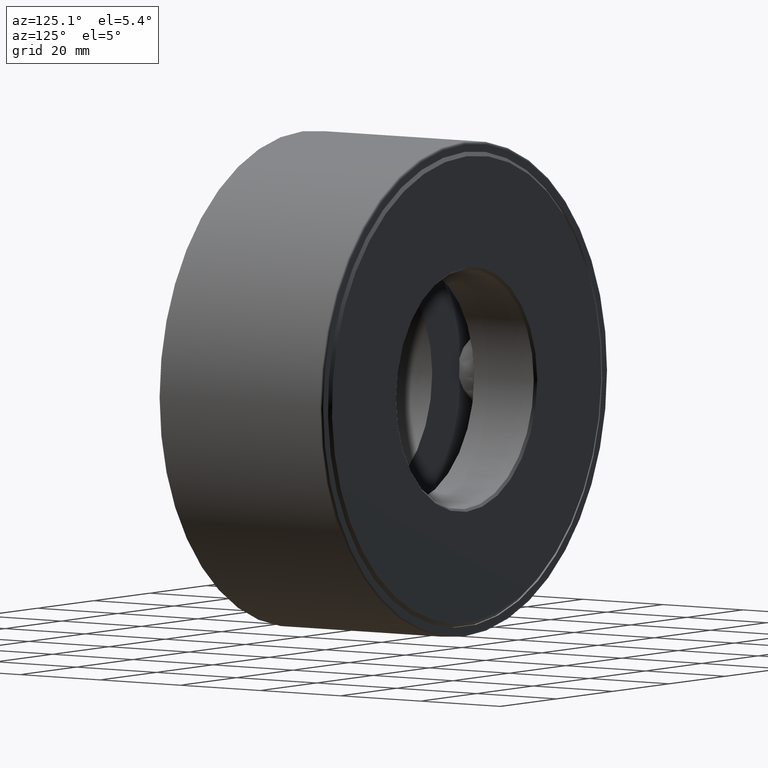
[diagram: clean part render]
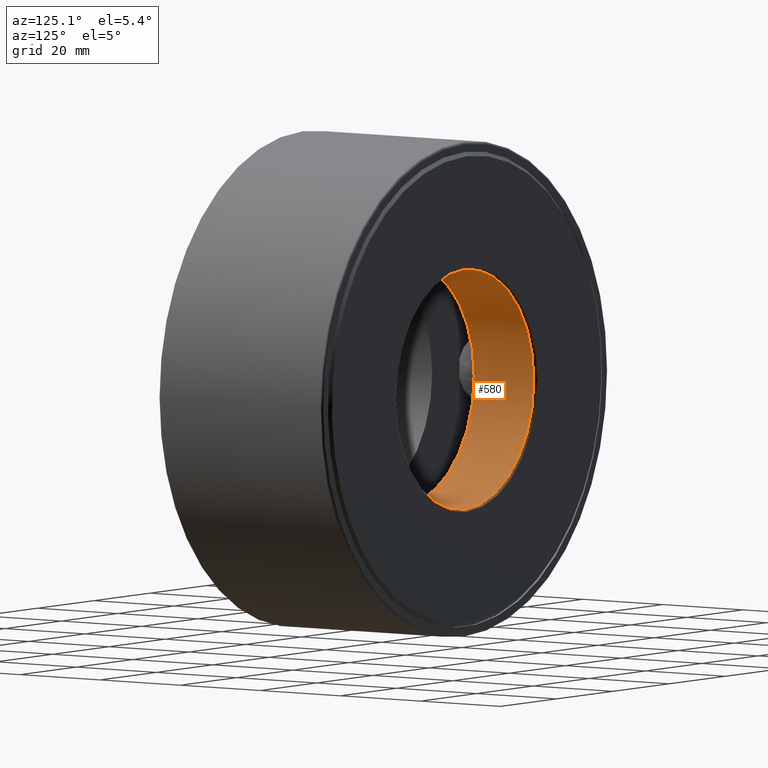
[diagram: same view with one face highlighted and labeled with its STEP entity id]
A machine part, auxiliary view. The second image highlights one B-rep face of the part: STEP entity #580.
In plain terms, the highlighted cylindrical surface (bore or boss wall) has radius 24.6063 mm, axis along (-0, 1, -0).
Its self-contained STEP definition (entity closure, byte-faithful):
#38 = CARTESIAN_POINT ( 'NONE',  ( 0.0000000000000000000, 1.018749999999999800, 0.9687500000000001100 ) ) ;
#55 = CARTESIAN_POINT ( 'NONE',  ( 0.0000000000000000000, 1.604999999999998900, 0.9687500000000001100 ) ) ;
#79 = VERTEX_POINT ( 'NONE', #38 ) ;
#122 = EDGE_CURVE ( 'NONE', #79, #79, #552, .T. ) ;
#124 = CARTESIAN_POINT ( 'NONE',  ( 0.0000000000000000000, 1.604999999999998900, 0.0000000000000000000 ) ) ;
#170 = DIRECTION ( 'NONE',  ( 0.0000000000000000000, 0.0000000000000000000, 1.000000000000000000 ) ) ;
#187 = DIRECTION ( 'NONE',  ( -0.0000000000000000000, 1.000000000000000000, -0.0000000000000000000 ) ) ;
#226 = EDGE_LOOP ( 'NONE', ( #403 ) ) ;
#238 = CARTESIAN_POINT ( 'NONE',  ( 0.0000000000000000000, 1.018749999999999800, 0.0000000000000000000 ) ) ;
#254 = CIRCLE ( 'NONE', #256, 0.9687500000000001100 ) ;
#256 = AXIS2_PLACEMENT_3D ( 'NONE', #124, #588, #437 ) ;
#276 = DIRECTION ( 'NONE',  ( 0.0000000000000000000, 0.0000000000000000000, 1.000000000000000000 ) ) ;
#291 = FACE_OUTER_BOUND ( 'NONE', #587, .T. ) ;
#327 = ORIENTED_EDGE ( 'NONE', *, *, #122, .F. ) ;
#350 = CARTESIAN_POINT ( 'NONE',  ( 0.0000000000000000000, 0.0000000000000000000, 0.0000000000000000000 ) ) ;
#387 = CYLINDRICAL_SURFACE ( 'NONE', #482, 0.9687500000000001100 ) ;
#403 = ORIENTED_EDGE ( 'NONE', *, *, #429, .T. ) ;
#429 = EDGE_CURVE ( 'NONE', #507, #507, #254, .T. ) ;
#431 = FACE_OUTER_BOUND ( 'NONE', #226, .T. ) ;
#437 = DIRECTION ( 'NONE',  ( 0.0000000000000000000, 0.0000000000000000000, 1.000000000000000000 ) ) ;
#458 = AXIS2_PLACEMENT_3D ( 'NONE', #238, #187, #276 ) ;
#482 = AXIS2_PLACEMENT_3D ( 'NONE', #350, #492, #170 ) ;
#492 = DIRECTION ( 'NONE',  ( -0.0000000000000000000, 1.000000000000000000, -0.0000000000000000000 ) ) ;
#507 = VERTEX_POINT ( 'NONE', #55 ) ;
#552 = CIRCLE ( 'NONE', #458, 0.9687500000000001100 ) ;
#580 = ADVANCED_FACE ( 'NONE', ( #431, #291 ), #387, .F. ) ;
#587 = EDGE_LOOP ( 'NONE', ( #327 ) ) ;
#588 = DIRECTION ( 'NONE',  ( -0.0000000000000000000, 1.000000000000000000, -0.0000000000000000000 ) ) ;